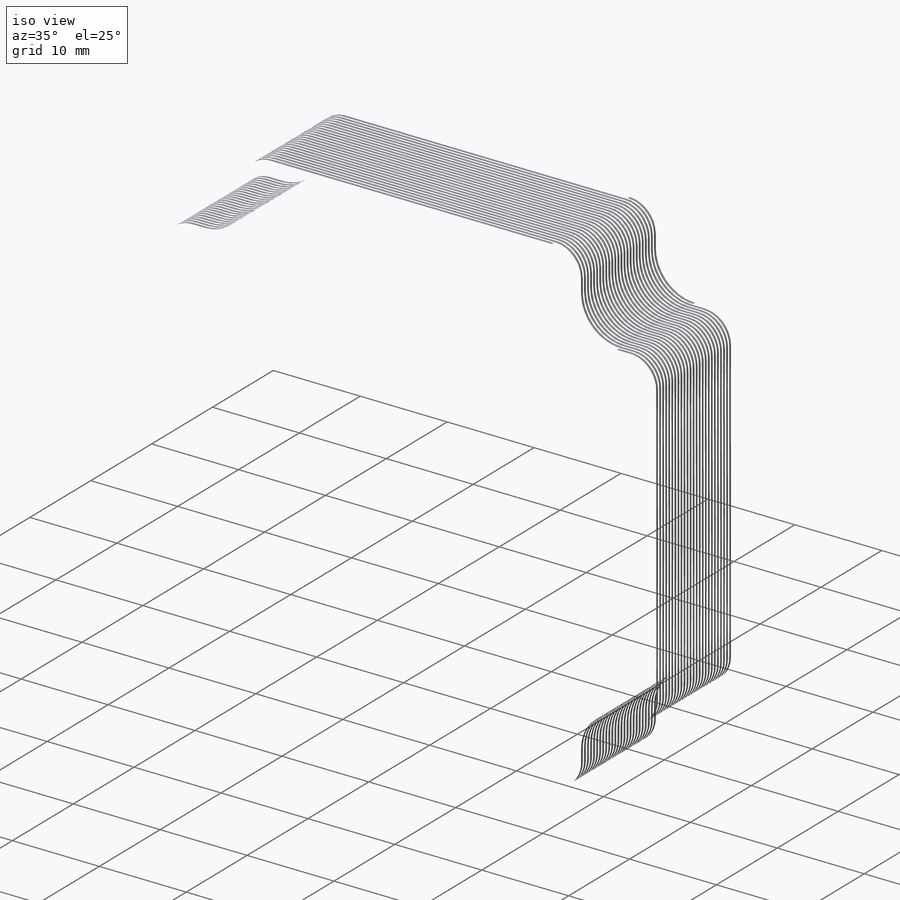
[diagram: iso view]
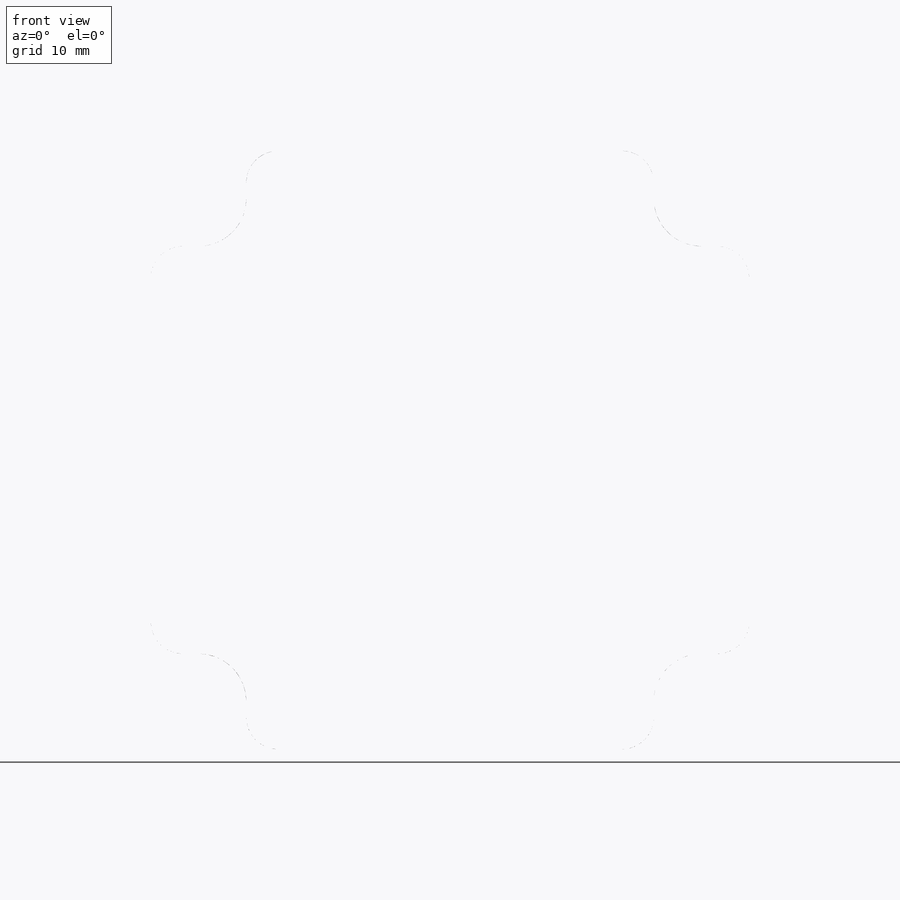
[diagram: front view]
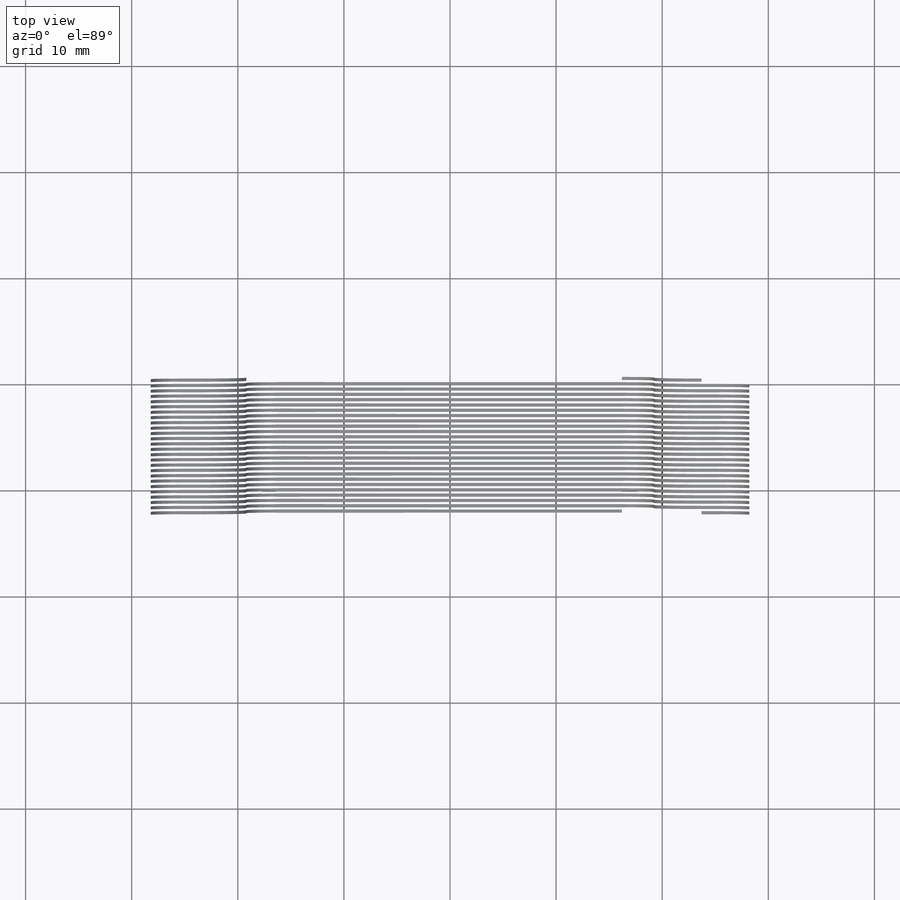
[diagram: top view]
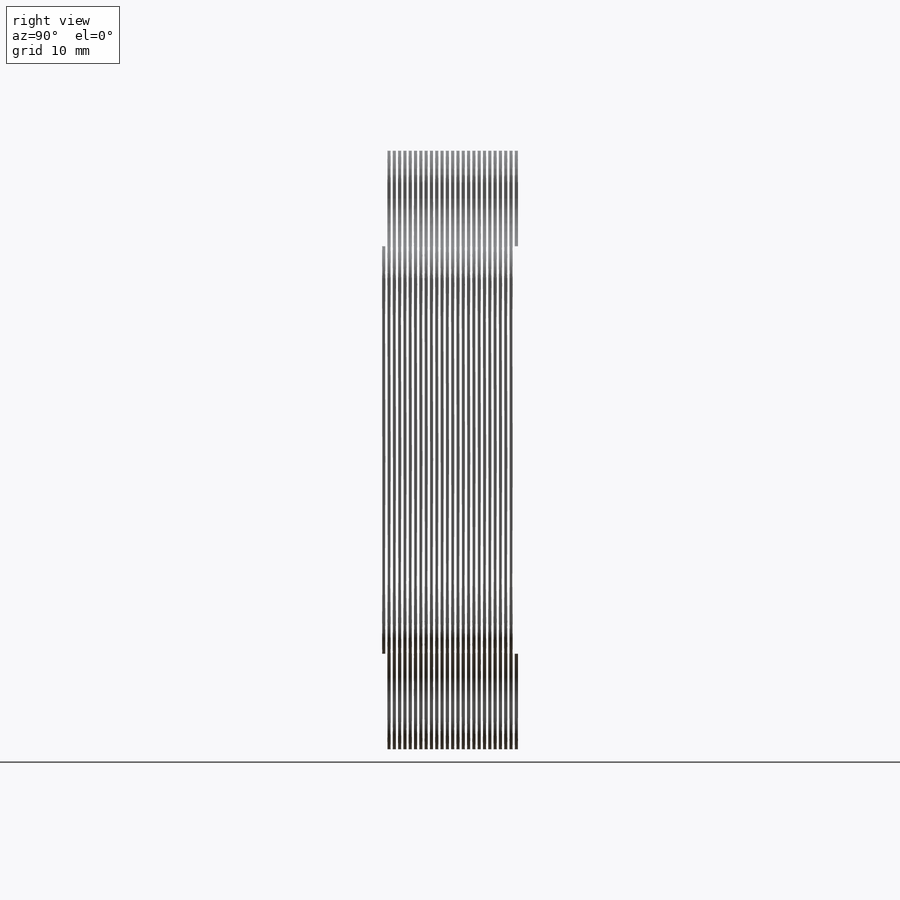
[diagram: right view]
SOLIDWORKS PART (.sldprt)
format: sldprt  version: not decoded by parser v0  size: 33,242,624 bytes
history: native  units: mm
features: sketch x4, material x1, extrude x1, sweep x1, pattern_linear x1 (+11 scaffold rows collapsed)
feature tree (19):
  scaffold x11  (default folders/planes/origin — collapsed)
  material  "1060 Alloy"
  sketch  "Sketch1"  dims[c1.D3=6.0mm c2.D3=52.2mm c2.D1=56.4mm c2.D2=47.4mm]
  extrude  "Boss-Extrude1"  Depth=53.2mm
  sketch  "Sketch2"  dims[D3=52.2mm D1=56.4mm D2=47.4mm]
  sketch  "Sketch3"  dims[c1.D3=0.15mm c1.D4=0.15mm c1.D1=0.6mm c1.D2=0.2mm c2.D1=0.3mm c2.D2=0.3mm c2.D3=0.125mm c3.D1=0.3mm c3.D2=0.3mm c3.D3=0.13mm]
  sketch  "Sketch4"
  sweep  "Cut-Sweep4"
  pattern_linear  "LPattern3"  Count1=107 Count2=1 Spacing1=0.5mm Spacing2=50mm
decode coverage: 5 of 7 modeling features carry decoded parameters
note: suppression state not decoded; provenance and decode notes live in map.json
